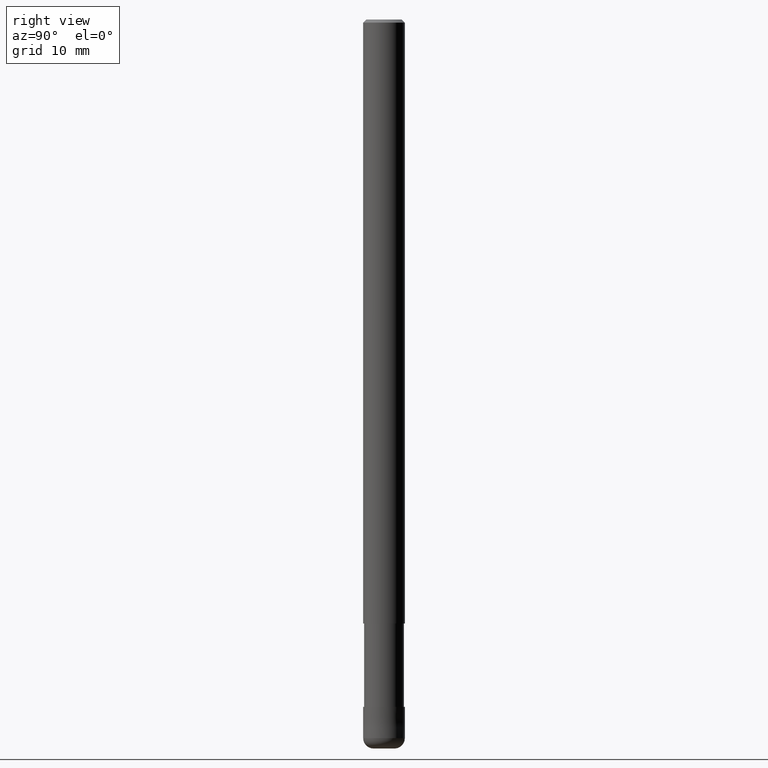
[diagram: clean part render]
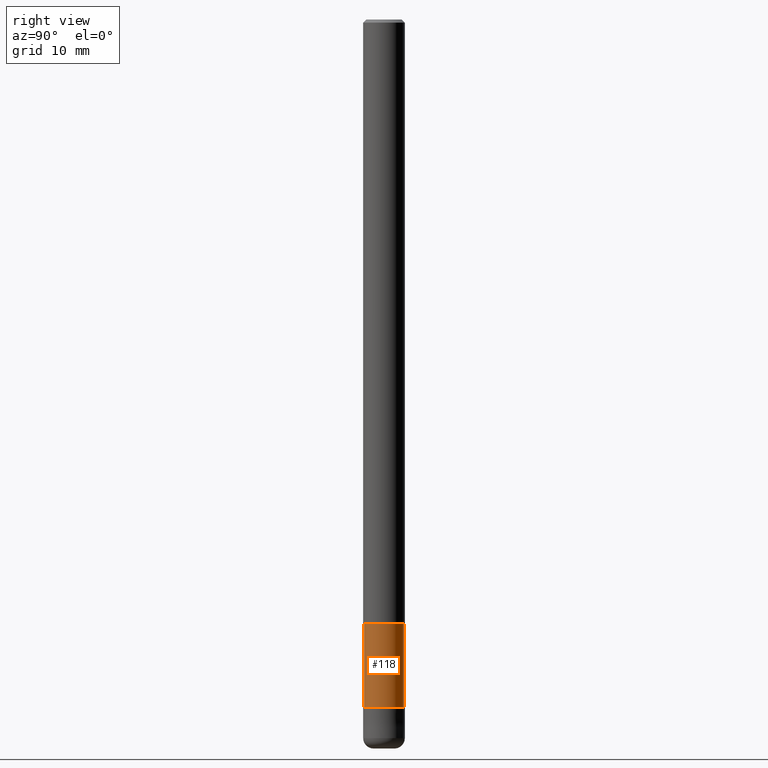
[diagram: same view with one face highlighted and labeled with its STEP entity id]
A machine part, right view. The second image highlights one B-rep face of the part: STEP entity #118.
In plain terms, the highlighted cylindrical surface (edge-blend (fillet) strip) has radius 1.91 mm, axis along (-0, -0, 1).
Its self-contained STEP definition (entity closure, byte-faithful):
#96=VERTEX_POINT('',#233);
#98=VERTEX_POINT('',#235);
#118=ADVANCED_FACE('',(#260),#261,.T.);
#120=VERTEX_POINT('',#263);
#134=EDGE_CURVE('',#194,#120,#277,.T.);
#142=EDGE_CURVE('',#194,#96,#286,.T.);
#148=EDGE_CURVE('',#96,#98,#292,.T.);
#194=VERTEX_POINT('',#345);
#206=EDGE_CURVE('',#98,#120,#359,.T.);
#233=CARTESIAN_POINT('',(0.0,1.90995,-66.0));
#235=CARTESIAN_POINT('',(2.33893690548305E-016,-1.90995,-66.0));
#260=FACE_OUTER_BOUND('',#409,.T.);
#261=CYLINDRICAL_SURFACE('',#410,1.90995);
#263=CARTESIAN_POINT('',(2.33893690548305E-016,-1.90995,-58.0));
#277=CIRCLE('',#432,1.90995);
#286=LINE('',#445,#446);
#292=CIRCLE('',#455,1.90995);
#345=CARTESIAN_POINT('',(0.0,1.90995,-58.0));
#359=LINE('',#534,#535);
#409=EDGE_LOOP('',(#586,#587,#588,#589));
#410=AXIS2_PLACEMENT_3D('',#590,#591,#592);
#432=AXIS2_PLACEMENT_3D('',#603,#604,#605);
#445=CARTESIAN_POINT('',(-2.33893690548305E-016,1.90995,-62.0));
#446=VECTOR('',#616,1.0);
#455=AXIS2_PLACEMENT_3D('',#623,#624,#625);
#534=CARTESIAN_POINT('',(2.33893690548305E-016,-1.90995,-62.0));
#535=VECTOR('',#712,1.0);
#586=ORIENTED_EDGE('',*,*,#142,.F.);
#587=ORIENTED_EDGE('',*,*,#134,.T.);
#588=ORIENTED_EDGE('',*,*,#206,.F.);
#589=ORIENTED_EDGE('',*,*,#148,.F.);
#590=CARTESIAN_POINT('',(0.0,0.0,-62.0));
#591=DIRECTION('',(-0.0,-0.0,1.0));
#592=DIRECTION('',(0.0,1.0,0.0));
#603=CARTESIAN_POINT('',(0.0,0.0,-58.0));
#604=DIRECTION('',(0.0,0.0,-1.0));
#605=DIRECTION('',(0.0,1.0,0.0));
#616=DIRECTION('',(0.0,0.0,-1.0));
#623=CARTESIAN_POINT('',(0.0,0.0,-66.0));
#624=DIRECTION('',(0.0,0.0,-1.0));
#625=DIRECTION('',(0.0,1.0,0.0));
#712=DIRECTION('',(-0.0,-0.0,1.0));